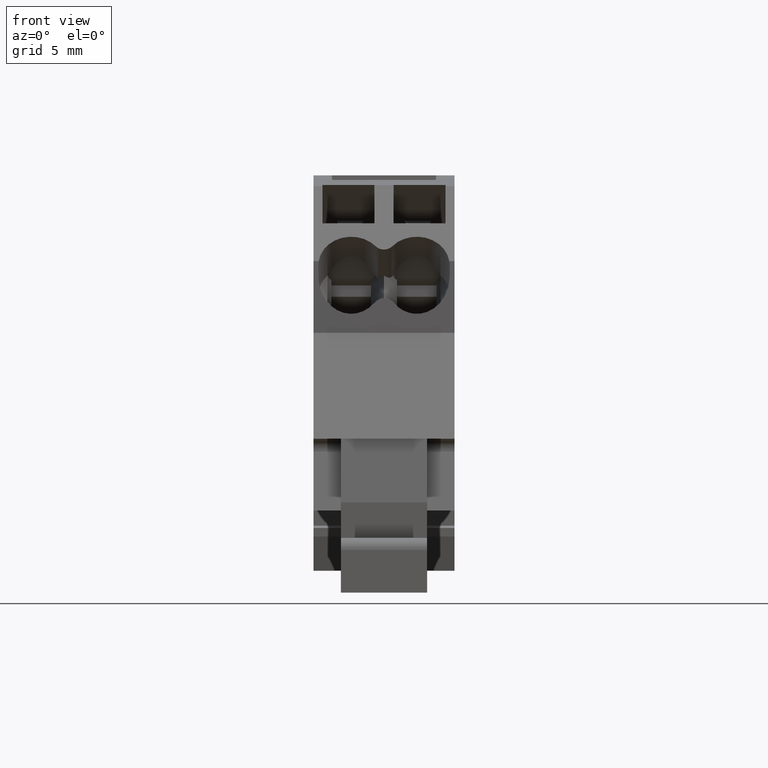
[diagram: clean part render]
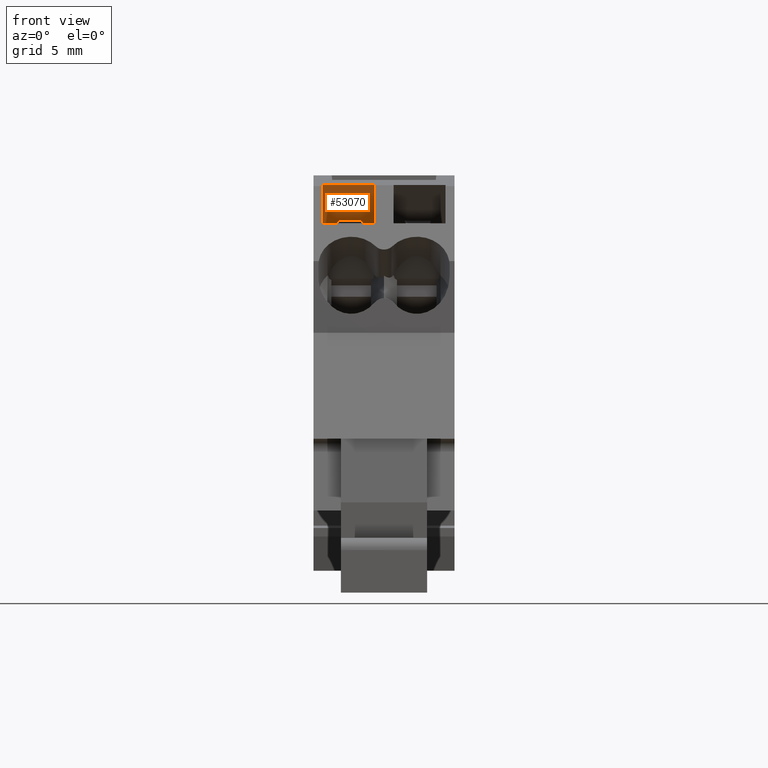
[diagram: same view with one face highlighted and labeled with its STEP entity id]
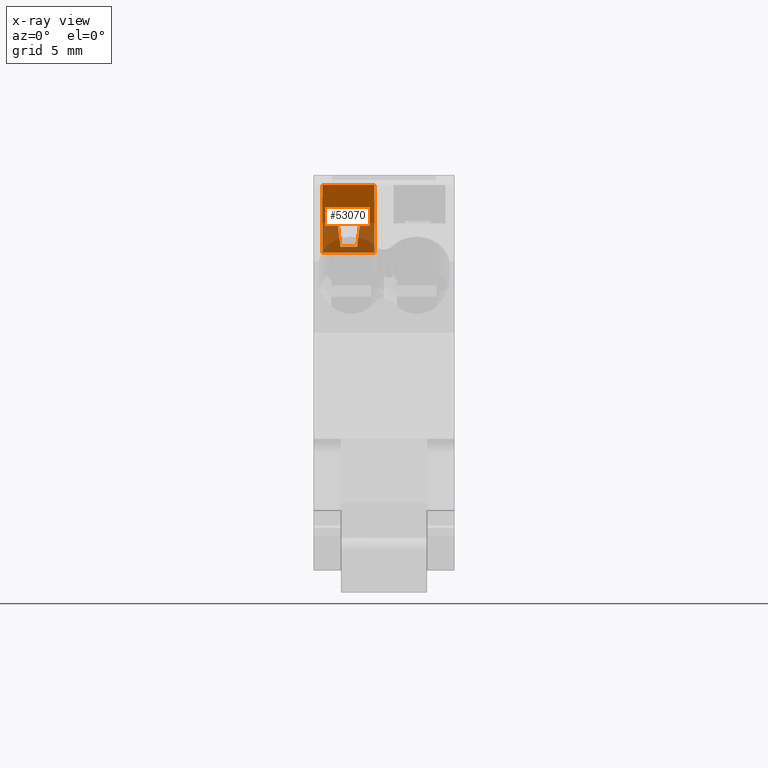
[diagram: x-ray of the same camera — body ghosted, the highlighted face saturated]
A machine part, front view. The second image highlights one B-rep face of the part: STEP entity #53070.
The next image is the same camera in x-ray: the body ghosted, the highlighted face saturated — about 36% of this face is hidden behind the body in this view.
In plain terms, the highlighted planar face has unit normal (-0, -0.5, -0.866).
Its self-contained STEP definition (entity closure, byte-faithful):
#51760=CARTESIAN_POINT('',(71.042597390884,135.146117187129,
5.44999999999999));
#51770=VERTEX_POINT('',#51760);
#51800=CARTESIAN_POINT('',(71.0425973908838,135.146117187128,
4.74999999999999));
#51810=DIRECTION('',(-1.67084001414436E-16,9.4953136706549E-17,1.));
#51820=VECTOR('',#51810,1.);
#51830=LINE('',#51800,#51820);
#51840=CARTESIAN_POINT('',(71.0425973908839,135.146117187129,
9.24999999999999));
#51850=VERTEX_POINT('',#51840);
#51860=EDGE_CURVE('',#51770,#51850,#51830,.T.);
#52350=CARTESIAN_POINT('',(71.0425973908842,135.900297329956,
9.24999999999999));
#52360=DIRECTION('',(1.,-3.49720252756924E-13,3.45246086648406E-14));
#52370=DIRECTION('',(-3.45246086648406E-14,9.9361022229421E-17,1.));
#52380=AXIS2_PLACEMENT_3D('',#52350,#52360,#52370);
#52390=PLANE('',#52380);
#52400=CARTESIAN_POINT('',(71.0425973908822,129.918193207319,4.75));
#52410=DIRECTION('',(-3.45246086648322E-14,2.41667367192347E-14,1.));
#52420=VECTOR('',#52410,1.);
#52430=LINE('',#52400,#52420);
#52440=CARTESIAN_POINT('',(71.0425973908822,129.91819320732,
6.2436877241716));
#52450=VERTEX_POINT('',#52440);
#52460=CARTESIAN_POINT('',(71.0425973908821,129.91819320732,
8.16793184878069));
#52470=VERTEX_POINT('',#52460);
#52480=EDGE_CURVE('',#52450,#52470,#52430,.T.);
#52490=ORIENTED_EDGE('',*,*,#52480,.F.);
#52500=CARTESIAN_POINT('',(71.0425973908777,117.723944849775,
7.41929913372011));
#52510=DIRECTION('',(-3.48943096639687E-13,-0.998120804318643,
-0.0612769123431251));
#52520=VECTOR('',#52510,1.);
#52530=LINE('',#52500,#52520);
#52540=CARTESIAN_POINT('',(71.0425973908808,126.100261495588,
7.93354031438973));
#52550=VERTEX_POINT('',#52540);
#52560=EDGE_CURVE('',#52470,#52550,#52530,.T.);
#52570=ORIENTED_EDGE('',*,*,#52560,.F.);
#52580=CARTESIAN_POINT('',(71.0425973908807,126.100261495588,
9.59999999999999));
#52590=DIRECTION('',(-1.48237930101846E-16,9.72259879018335E-17,1.));
#52600=VECTOR('',#52590,1.);
#52610=LINE('',#52580,#52600);
#52620=CARTESIAN_POINT('',(71.0425973908808,126.100261495588,
6.71645968561059));
#52630=VERTEX_POINT('',#52620);
#52640=EDGE_CURVE('',#52630,#52550,#52610,.T.);
#52650=ORIENTED_EDGE('',*,*,#52640,.T.);
#52660=CARTESIAN_POINT('',(71.0425973908777,117.12020007239,
7.26776613497454));
#52670=DIRECTION('',(3.51108031537706E-13,0.998120804318642,
-0.0612769123431251));
#52680=VECTOR('',#52670,1.);
#52690=LINE('',#52660,#52680);
#52700=CARTESIAN_POINT('',(71.0425973908818,128.864322422654,
6.54676768199139));
#52710=VERTEX_POINT('',#52700);
#52720=EDGE_CURVE('',#52630,#52710,#52690,.T.);
#52730=ORIENTED_EDGE('',*,*,#52720,.F.);
#52740=CARTESIAN_POINT('',(71.0425973908776,117.12020007239,
9.92422928197019));
#52750=DIRECTION('',(3.45723449868274E-13,0.961046996003505,
-0.276385005875209));
#52760=VECTOR('',#52750,1.);
#52770=LINE('',#52740,#52760);
#52780=EDGE_CURVE('',#52710,#52450,#52770,.T.);
#52790=ORIENTED_EDGE('',*,*,#52780,.F.);
#52800=EDGE_LOOP('',(#52790,#52730,#52650,#52570,#52490));
#52810=FACE_BOUND('',#52800,.T.);
#52820=CARTESIAN_POINT('',(71.0425973908804,125.266419736978,
9.59999999999999));
#52830=DIRECTION('',(1.48237930101827E-16,-1.14160764548627E-16,-1.));
#52840=VECTOR('',#52830,1.);
#52850=LINE('',#52820,#52840);
#52860=CARTESIAN_POINT('',(71.0425973908804,125.266419736978,
9.24999999999999));
#52870=VERTEX_POINT('',#52860);
#52880=CARTESIAN_POINT('',(71.0425973908806,125.266419736978,
5.44999999999999));
#52890=VERTEX_POINT('',#52880);
#52900=EDGE_CURVE('',#52870,#52890,#52850,.T.);
#52910=ORIENTED_EDGE('',*,*,#52900,.T.);
#52920=CARTESIAN_POINT('',(71.0425973908777,117.723944849775,
9.24999999999999));
#52930=DIRECTION('',(-3.49609230454462E-13,-1.,9.93610222172993E-17));
#52940=VECTOR('',#52930,1.);
#52950=LINE('',#52920,#52940);
#52960=EDGE_CURVE('',#51850,#52870,#52950,.T.);
#52970=ORIENTED_EDGE('',*,*,#52960,.T.);
#52980=ORIENTED_EDGE('',*,*,#51860,.T.);
#52990=CARTESIAN_POINT('',(71.0425973908843,135.900297329961,
5.44999999999999));
#53000=DIRECTION('',(3.49775763908156E-13,1.,-9.93610222173521E-17));
#53010=VECTOR('',#53000,1.);
#53020=LINE('',#52990,#53010);
#53030=EDGE_CURVE('',#52890,#51770,#53020,.T.);
#53040=ORIENTED_EDGE('',*,*,#53030,.T.);
#53050=EDGE_LOOP('',(#53040,#52980,#52970,#52910));
#53060=FACE_OUTER_BOUND('',#53050,.T.);
#53070=ADVANCED_FACE('',(#52810,#53060),#52390,.T.);